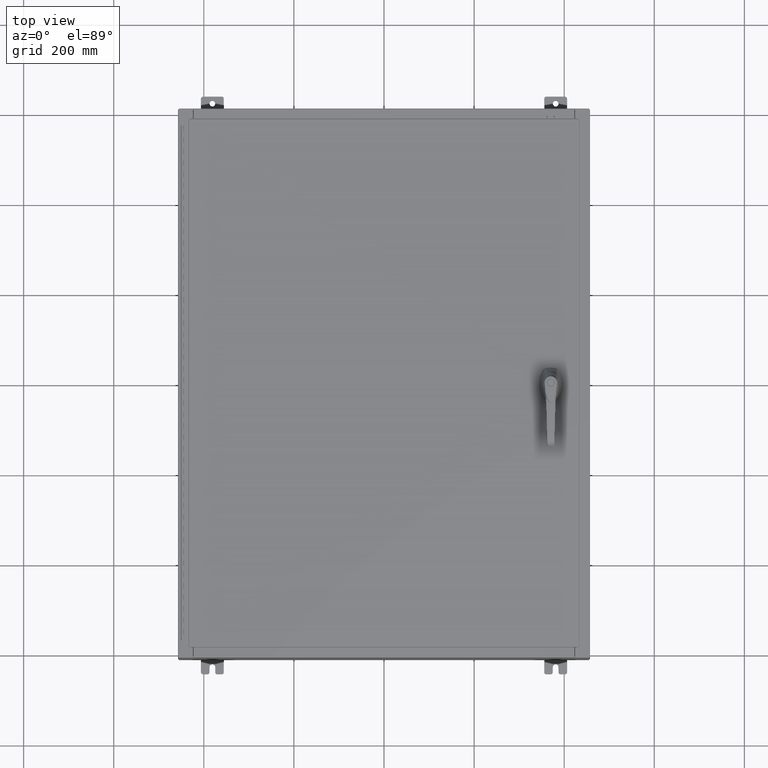
[diagram: clean part render]
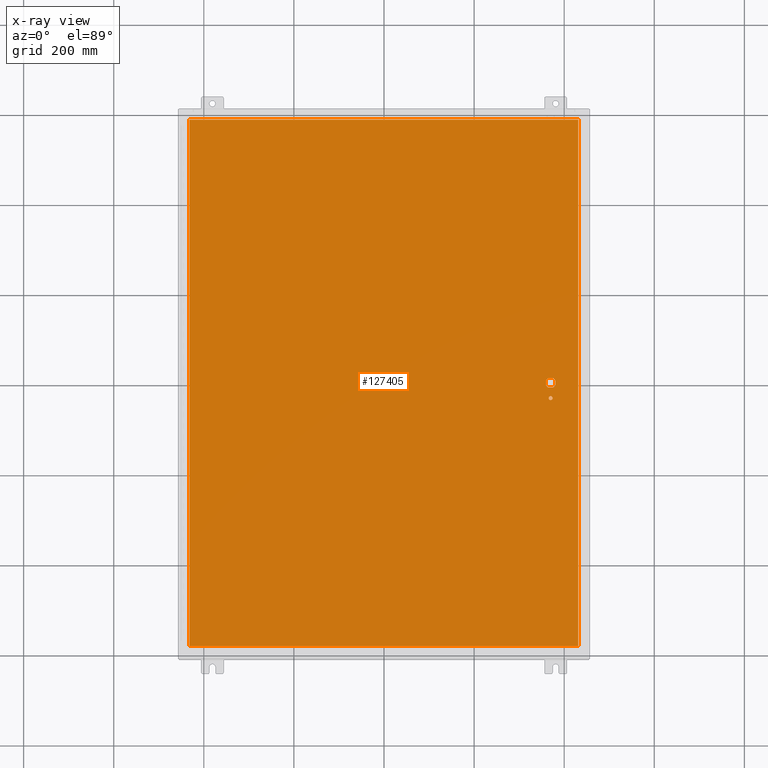
[diagram: x-ray — body ghosted, one internal face saturated and labeled with its STEP entity id]
A machine part, top view, then the same camera in x-ray: the body is ghosted and one INTERNAL B-rep face — a face not visible from any outside direction — is saturated and labeled: STEP entity #127405.
In plain terms, the highlighted planar face has unit normal (0, 0, -1).
Its self-contained STEP definition (entity closure, byte-faithful):
#232 = VECTOR ( 'NONE', #83711, 39.37007874015748100 ) ;
#573 = DIRECTION ( 'NONE',  ( -0.0000000000000000000, -0.0000000000000000000, 1.000000000000000000 ) ) ;
#819 = CARTESIAN_POINT ( 'NONE',  ( -16.99029999999999800, -23.00630000000000300, -0.07469999999999804600 ) ) ;
#3335 = DIRECTION ( 'NONE',  ( 0.0000000000000000000, 0.0000000000000000000, -1.000000000000000000 ) ) ;
#4847 = VERTEX_POINT ( 'NONE', #40610 ) ;
#6473 = EDGE_LOOP ( 'NONE', ( #103416, #84335, #80525, #48710, #85702, #92291, #14876, #87007 ) ) ;
#11234 = DIRECTION ( 'NONE',  ( 1.000000000000000000, -0.0000000000000000000, -0.0000000000000000000 ) ) ;
#12720 = VECTOR ( 'NONE', #116326, 39.37007874015748100 ) ;
#14876 = ORIENTED_EDGE ( 'NONE', *, *, #57799, .T. ) ;
#16053 = EDGE_CURVE ( 'NONE', #93549, #25325, #127168, .T. ) ;
#16617 = AXIS2_PLACEMENT_3D ( 'NONE', #95110, #32994, #105538 ) ;
#18058 = LINE ( 'NONE', #21560, #232 ) ;
#19706 = CARTESIAN_POINT ( 'NONE',  ( 16.99029999999999800, -23.00630000000000000, -0.07470000000000000300 ) ) ;
#21399 = VECTOR ( 'NONE', #37591, 39.37007874015748100 ) ;
#21560 = CARTESIAN_POINT ( 'NONE',  ( 0.0000000000000000000, -0.4029999999999252000, -0.07470000000000003000 ) ) ;
#21622 = LINE ( 'NONE', #118902, #45951 ) ;
#23985 = AXIS2_PLACEMENT_3D ( 'NONE', #62694, #573, #73136 ) ;
#24630 = LINE ( 'NONE', #27176, #21399 ) ;
#25325 = VERTEX_POINT ( 'NONE', #89430 ) ;
#25974 = AXIS2_PLACEMENT_3D ( 'NONE', #85933, #3335, #75931 ) ;
#26984 = EDGE_CURVE ( 'NONE', #48046, #56560, #18058, .T. ) ;
#27176 = CARTESIAN_POINT ( 'NONE',  ( 0.0000000000000000000, 0.4029999999999252000, -0.07470000000000003000 ) ) ;
#28369 = LINE ( 'NONE', #101850, #52722 ) ;
#28390 = CARTESIAN_POINT ( 'NONE',  ( 14.98099999999992700, -0.2002273707563067300, -0.07470000000000003000 ) ) ;
#28655 = VERTEX_POINT ( 'NONE', #105875 ) ;
#29714 = VERTEX_POINT ( 'NONE', #73822 ) ;
#31281 = CARTESIAN_POINT ( 'NONE',  ( 14.37777262924369000, -0.4029999999999250300, -0.07470000000000003000 ) ) ;
#31827 = VERTEX_POINT ( 'NONE', #62419 ) ;
#31891 = EDGE_CURVE ( 'NONE', #122706, #63720, #40332, .T. ) ;
#32280 = ORIENTED_EDGE ( 'NONE', *, *, #16053, .F. ) ;
#32994 = DIRECTION ( 'NONE',  ( -0.0000000000000000000, -0.0000000000000000000, 1.000000000000000000 ) ) ;
#37591 = DIRECTION ( 'NONE',  ( -1.000000000000000000, 0.0000000000000000000, 0.0000000000000000000 ) ) ;
#38317 = CARTESIAN_POINT ( 'NONE',  ( 14.57799999999999900, -1.338000000000000100, -0.07470000000000003000 ) ) ;
#38568 = CARTESIAN_POINT ( 'NONE',  ( 14.57799999999999900, -1.338000000000000100, -0.07470000000000003000 ) ) ;
#40332 = LINE ( 'NONE', #105932, #12720 ) ;
#40610 = CARTESIAN_POINT ( 'NONE',  ( 14.77822737075630900, 0.4029999999999250300, -0.07470000000000003000 ) ) ;
#40703 = CARTESIAN_POINT ( 'NONE',  ( 14.57799999999999900, 0.0000000000000000000, -0.07470000000000003000 ) ) ;
#41171 = LINE ( 'NONE', #819, #89838 ) ;
#41280 = CIRCLE ( 'NONE', #23985, 0.4499999999999168000 ) ;
#44878 = CIRCLE ( 'NONE', #103663, 0.4499999999999168000 ) ;
#45951 = VECTOR ( 'NONE', #46399, 39.37007874015748100 ) ;
#46399 = DIRECTION ( 'NONE',  ( 0.0000000000000000000, -1.000000000000000000, 0.0000000000000000000 ) ) ;
#46908 = EDGE_CURVE ( 'NONE', #31827, #129943, #87309, .T. ) ;
#48046 = VERTEX_POINT ( 'NONE', #31281 ) ;
#48498 = CARTESIAN_POINT ( 'NONE',  ( 14.57799999999999900, 0.0000000000000000000, -0.07470000000000003000 ) ) ;
#48710 = ORIENTED_EDGE ( 'NONE', *, *, #128202, .T. ) ;
#48750 = DIRECTION ( 'NONE',  ( -1.000000000000000000, 0.0000000000000000000, 0.0000000000000000000 ) ) ;
#49004 = DIRECTION ( 'NONE',  ( -1.000000000000000000, 0.0000000000000000000, 0.0000000000000000000 ) ) ;
#50543 = CIRCLE ( 'NONE', #128692, 0.4499999999999168000 ) ;
#51115 = DIRECTION ( 'NONE',  ( -1.000000000000000000, -5.329070518200740300E-015, 0.0000000000000000000 ) ) ;
#52722 = VECTOR ( 'NONE', #102748, 39.37007874015748100 ) ;
#53361 = CIRCLE ( 'NONE', #131261, 0.1715000000000011500 ) ;
#56560 = VERTEX_POINT ( 'NONE', #122165 ) ;
#57799 = EDGE_CURVE ( 'NONE', #84626, #48046, #73421, .T. ) ;
#58476 = CARTESIAN_POINT ( 'NONE',  ( 14.17500000000007400, 0.0000000000000000000, -0.07470000000000003000 ) ) ;
#58924 = DIRECTION ( 'NONE',  ( -1.000000000000000000, -1.776356839400246700E-015, 0.0000000000000000000 ) ) ;
#62021 = EDGE_LOOP ( 'NONE', ( #32280, #80940, #109223, #73045 ) ) ;
#62419 = CARTESIAN_POINT ( 'NONE',  ( 14.74950000000000100, -1.338000000000000100, -0.07470000000000003000 ) ) ;
#62694 = CARTESIAN_POINT ( 'NONE',  ( 14.57799999999999900, 0.0000000000000000000, -0.07470000000000003000 ) ) ;
#63720 = VERTEX_POINT ( 'NONE', #28390 ) ;
#63743 = CARTESIAN_POINT ( 'NONE',  ( 14.98099999999992700, 0.2002273707563075900, -0.07470000000000003000 ) ) ;
#63869 = EDGE_CURVE ( 'NONE', #25325, #81526, #28369, .T. ) ;
#64533 = EDGE_CURVE ( 'NONE', #98029, #28655, #41280, .T. ) ;
#65514 = PLANE ( 'NONE',  #25974 ) ;
#66651 = DIRECTION ( 'NONE',  ( 0.0000000000000000000, 1.000000000000000000, 0.0000000000000000000 ) ) ;
#67057 = CARTESIAN_POINT ( 'NONE',  ( 14.40649999999999800, -1.338000000000000100, -0.07470000000000003000 ) ) ;
#70198 = FACE_BOUND ( 'NONE', #6473, .T. ) ;
#70879 = CARTESIAN_POINT ( 'NONE',  ( -16.99029999999999400, 23.00630000000000300, -0.07470000000000000300 ) ) ;
#73045 = ORIENTED_EDGE ( 'NONE', *, *, #63869, .F. ) ;
#73136 = DIRECTION ( 'NONE',  ( -1.000000000000000000, -5.329070518200740300E-015, 0.0000000000000000000 ) ) ;
#73421 = CIRCLE ( 'NONE', #16617, 0.4499999999999168000 ) ;
#73457 = FACE_OUTER_BOUND ( 'NONE', #62021, .T. ) ;
#73822 = CARTESIAN_POINT ( 'NONE',  ( -16.99029999999999800, -23.00630000000000000, -0.07470000000000000300 ) ) ;
#75931 = DIRECTION ( 'NONE',  ( -1.000000000000000000, 0.0000000000000000000, -0.0000000000000000000 ) ) ;
#80525 = ORIENTED_EDGE ( 'NONE', *, *, #132463, .T. ) ;
#80940 = ORIENTED_EDGE ( 'NONE', *, *, #126386, .F. ) ;
#81526 = VERTEX_POINT ( 'NONE', #70879 ) ;
#83711 = DIRECTION ( 'NONE',  ( 1.000000000000000000, 0.0000000000000000000, 0.0000000000000000000 ) ) ;
#84335 = ORIENTED_EDGE ( 'NONE', *, *, #31891, .F. ) ;
#84626 = VERTEX_POINT ( 'NONE', #119389 ) ;
#85702 = ORIENTED_EDGE ( 'NONE', *, *, #64533, .T. ) ;
#85933 = CARTESIAN_POINT ( 'NONE',  ( 0.0000000000000000000, 0.0000000000000000000, -0.07470000000000000300 ) ) ;
#87007 = ORIENTED_EDGE ( 'NONE', *, *, #26984, .T. ) ;
#87309 = CIRCLE ( 'NONE', #121845, 0.1715000000000011500 ) ;
#88644 = EDGE_CURVE ( 'NONE', #56560, #63720, #50543, .T. ) ;
#89430 = CARTESIAN_POINT ( 'NONE',  ( 16.99029999999999800, 23.00630000000000300, -0.07470000000000000300 ) ) ;
#89838 = VECTOR ( 'NONE', #11234, 39.37007874015748100 ) ;
#90432 = ORIENTED_EDGE ( 'NONE', *, *, #115728, .T. ) ;
#91350 = EDGE_LOOP ( 'NONE', ( #130900, #90432 ) ) ;
#92291 = ORIENTED_EDGE ( 'NONE', *, *, #121492, .T. ) ;
#93549 = VERTEX_POINT ( 'NONE', #19706 ) ;
#95110 = CARTESIAN_POINT ( 'NONE',  ( 14.57799999999999900, 0.0000000000000000000, -0.07470000000000003000 ) ) ;
#95254 = VECTOR ( 'NONE', #120582, 39.37007874015748100 ) ;
#98029 = VERTEX_POINT ( 'NONE', #111248 ) ;
#101850 = CARTESIAN_POINT ( 'NONE',  ( 16.99029999999999800, 23.00630000000001000, -0.07469999999999804600 ) ) ;
#102748 = DIRECTION ( 'NONE',  ( -1.000000000000000000, -0.0000000000000000000, -0.0000000000000000000 ) ) ;
#103416 = ORIENTED_EDGE ( 'NONE', *, *, #88644, .T. ) ;
#103663 = AXIS2_PLACEMENT_3D ( 'NONE', #40703, #113217, #51115 ) ;
#105538 = DIRECTION ( 'NONE',  ( -1.000000000000000000, -1.776356839400246700E-015, 0.0000000000000000000 ) ) ;
#105875 = CARTESIAN_POINT ( 'NONE',  ( 14.17500000000007400, 0.2002273707563075900, -0.07470000000000003000 ) ) ;
#105932 = CARTESIAN_POINT ( 'NONE',  ( 14.98099999999992700, 8.175868191945441800E-014, -0.07470000000000003000 ) ) ;
#109223 = ORIENTED_EDGE ( 'NONE', *, *, #111310, .F. ) ;
#110868 = DIRECTION ( 'NONE',  ( -0.0000000000000000000, -0.0000000000000000000, 1.000000000000000000 ) ) ;
#111108 = DIRECTION ( 'NONE',  ( -0.0000000000000000000, -0.0000000000000000000, 1.000000000000000000 ) ) ;
#111248 = CARTESIAN_POINT ( 'NONE',  ( 14.37777262924369000, 0.4029999999999252000, -0.07470000000000003000 ) ) ;
#111310 = EDGE_CURVE ( 'NONE', #81526, #29714, #21622, .T. ) ;
#113217 = DIRECTION ( 'NONE',  ( -0.0000000000000000000, -0.0000000000000000000, 1.000000000000000000 ) ) ;
#115728 = EDGE_CURVE ( 'NONE', #129943, #31827, #53361, .T. ) ;
#116326 = DIRECTION ( 'NONE',  ( 5.457491617345625800E-015, -1.000000000000000000, 0.0000000000000000000 ) ) ;
#118283 = CARTESIAN_POINT ( 'NONE',  ( 16.99029999999999800, -23.00630000000000300, -0.07470000000000019700 ) ) ;
#118902 = CARTESIAN_POINT ( 'NONE',  ( -16.99029999999999400, 23.00630000000001000, -0.07470000000000129300 ) ) ;
#119389 = CARTESIAN_POINT ( 'NONE',  ( 14.17500000000007400, -0.2002273707563079800, -0.07470000000000003000 ) ) ;
#120582 = DIRECTION ( 'NONE',  ( 0.0000000000000000000, -1.000000000000000000, 0.0000000000000000000 ) ) ;
#120999 = DIRECTION ( 'NONE',  ( -0.0000000000000000000, -0.0000000000000000000, 1.000000000000000000 ) ) ;
#121492 = EDGE_CURVE ( 'NONE', #28655, #84626, #126064, .T. ) ;
#121845 = AXIS2_PLACEMENT_3D ( 'NONE', #38568, #111108, #49004 ) ;
#122052 = FACE_BOUND ( 'NONE', #91350, .T. ) ;
#122165 = CARTESIAN_POINT ( 'NONE',  ( 14.77822737075630900, -0.4029999999999252000, -0.07470000000000003000 ) ) ;
#122706 = VERTEX_POINT ( 'NONE', #63743 ) ;
#123893 = VECTOR ( 'NONE', #66651, 39.37007874015748100 ) ;
#126064 = LINE ( 'NONE', #58476, #95254 ) ;
#126386 = EDGE_CURVE ( 'NONE', #29714, #93549, #41171, .T. ) ;
#127168 = LINE ( 'NONE', #118283, #123893 ) ;
#127405 = ADVANCED_FACE ( 'NONE', ( #122052, #73457, #70198 ), #65514, .T. ) ;
#128202 = EDGE_CURVE ( 'NONE', #4847, #98029, #24630, .T. ) ;
#128692 = AXIS2_PLACEMENT_3D ( 'NONE', #48498, #120999, #58924 ) ;
#129943 = VERTEX_POINT ( 'NONE', #67057 ) ;
#130900 = ORIENTED_EDGE ( 'NONE', *, *, #46908, .T. ) ;
#131261 = AXIS2_PLACEMENT_3D ( 'NONE', #38317, #110868, #48750 ) ;
#132463 = EDGE_CURVE ( 'NONE', #122706, #4847, #44878, .T. ) ;